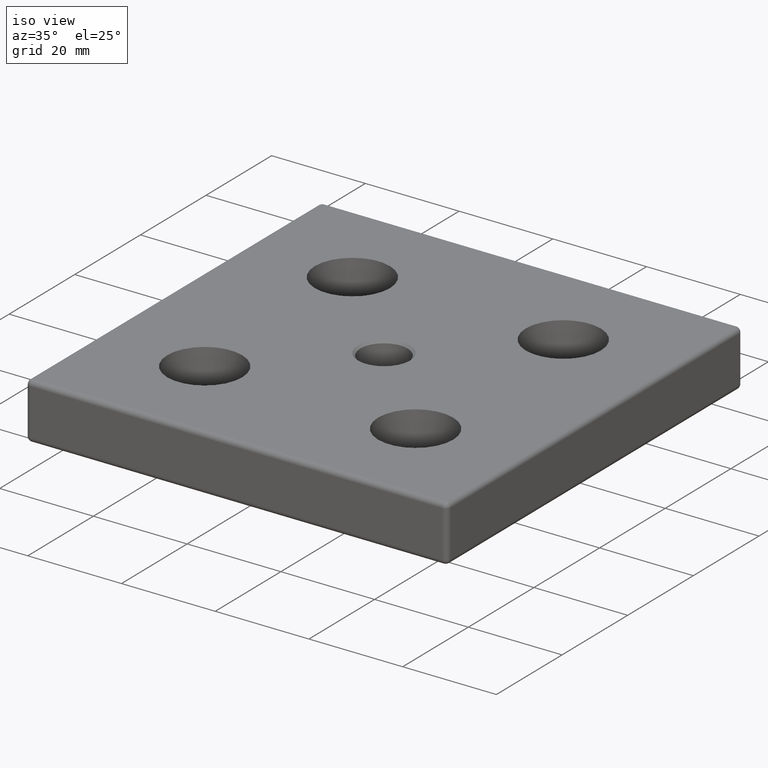
[diagram: clean part render]
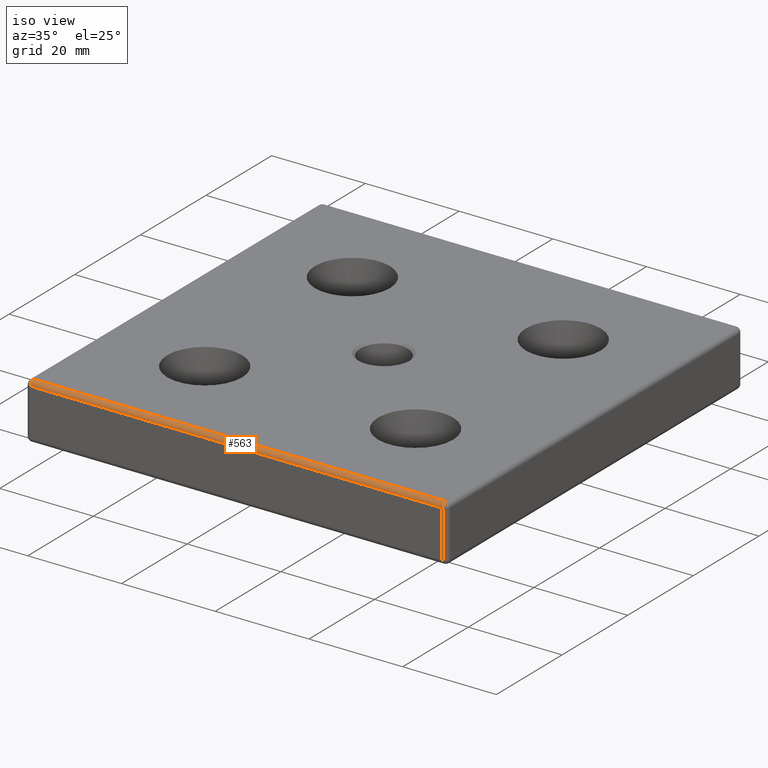
[diagram: same view with one face highlighted and labeled with its STEP entity id]
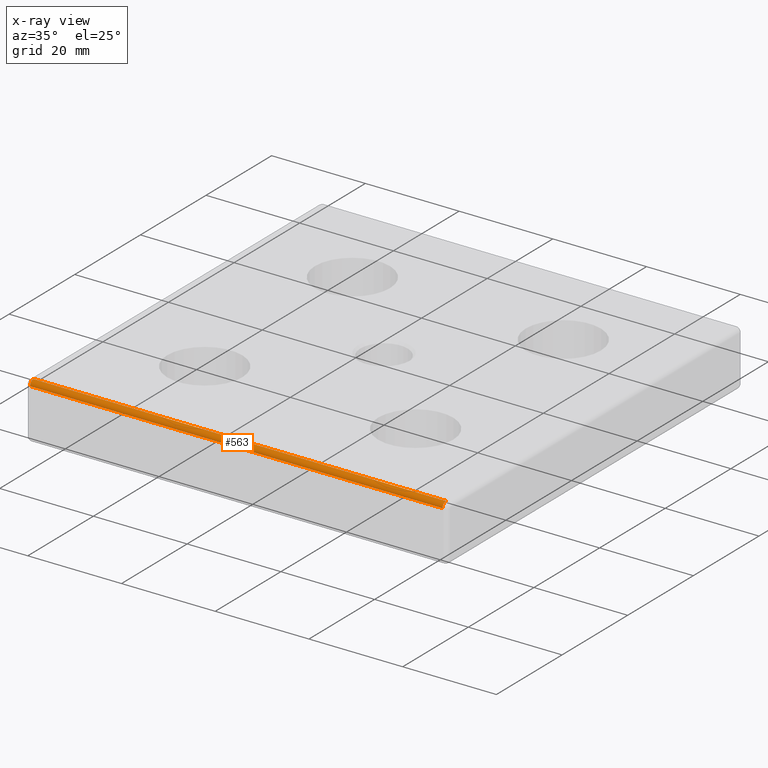
[diagram: x-ray of the same camera — body ghosted, the highlighted face saturated]
A machine part, iso view. The second image highlights one B-rep face of the part: STEP entity #563.
The next image is the same camera in x-ray: the body ghosted, the highlighted face saturated — about 0% of this face is hidden behind the body in this view.
In plain terms, the highlighted cylindrical surface (edge-blend (fillet) strip) has radius 1 mm, axis along (1, 0, 0).
Its self-contained STEP definition (entity closure, byte-faithful):
#29=LINE('',#888,#53);
#44=LINE('',#998,#68);
#53=VECTOR('',#690,88.);
#68=VECTOR('',#839,88.);
#100=CYLINDRICAL_SURFACE('',#650,1.);
#162=FACE_OUTER_BOUND('',#228,.T.);
#228=EDGE_LOOP('',(#502,#503,#504,#505));
#256=CIRCLE('',#611,1.);
#260=CIRCLE('',#617,0.999999999999996);
#292=VERTEX_POINT('',#885);
#293=VERTEX_POINT('',#887);
#307=VERTEX_POINT('',#929);
#310=VERTEX_POINT('',#939);
#336=EDGE_CURVE('',#293,#292,#29,.T.);
#352=EDGE_CURVE('',#292,#307,#256,.F.);
#356=EDGE_CURVE('',#310,#293,#260,.F.);
#387=EDGE_CURVE('',#307,#310,#44,.T.);
#502=ORIENTED_EDGE('',*,*,#356,.T.);
#503=ORIENTED_EDGE('',*,*,#336,.T.);
#504=ORIENTED_EDGE('',*,*,#352,.T.);
#505=ORIENTED_EDGE('',*,*,#387,.T.);
#563=ADVANCED_FACE('',(#162),#100,.T.);
#611=AXIS2_PLACEMENT_3D('',#931,#746,#747);
#617=AXIS2_PLACEMENT_3D('',#940,#758,#759);
#650=AXIS2_PLACEMENT_3D('',#997,#837,#838);
#690=DIRECTION('',(-1.,0.,0.));
#746=DIRECTION('center_axis',(-1.,0.,0.));
#747=DIRECTION('ref_axis',(0.,0.,1.));
#758=DIRECTION('center_axis',(1.,0.,0.));
#759=DIRECTION('ref_axis',(0.,-1.,0.));
#837=DIRECTION('center_axis',(1.,0.,0.));
#838=DIRECTION('ref_axis',(0.,-0.707106781186546,0.707106781186549));
#839=DIRECTION('',(1.,0.,0.));
#885=CARTESIAN_POINT('',(-44.,-44.,12.));
#887=CARTESIAN_POINT('',(44.,-44.,12.));
#888=CARTESIAN_POINT('',(-22.5,-44.,12.));
#929=CARTESIAN_POINT('',(-44.,-45.,11.));
#931=CARTESIAN_POINT('Origin',(-44.,-44.,11.));
#939=CARTESIAN_POINT('',(44.,-45.,11.));
#940=CARTESIAN_POINT('Origin',(44.,-44.,11.));
#997=CARTESIAN_POINT('Origin',(-22.5,-44.,11.));
#998=CARTESIAN_POINT('',(-22.5,-45.,11.));